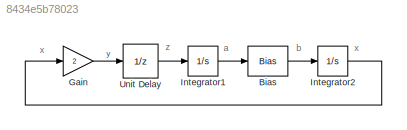
MODEL slx_8434e5b78023
KIND model
CONFIG AbsTol = auto
CONFIG EnableMultiTasking = off
CONFIG FixedStep = auto
CONFIG MaxStep = auto
CONFIG MinStep = auto
CONFIG RelTol = 1e-3
CONFIG SampleTimeConstraint = Unconstrained
CONFIG SolverName = VariableStepAuto
CONFIG StartTime = 0.0
CONFIG StopTime = 10.0
BLOCK [Bias] Bias 
  Bias = 2
  SaturateOnIntegerOverflow = off
BLOCK [Gain] Gain 
  Gain = 2
  SampleTime = 1
BLOCK [Integrator] Integrator1 
  Ports = [1, 1]
BLOCK [Integrator] Integrator2 
  Ports = [1, 1]
BLOCK [UnitDelay] Unit Delay 
  HasFrameUpgradeWarning = on
  SampleTime = -1
ANNOTATION (root): a
ANNOTATION (root): b
ANNOTATION (root): x
ANNOTATION (root): z
LINE Bias :1 -> Integrator2 :1
LINE Gain :1 -> Unit Delay :1
LINE Integrator1 :1 -> Bias :1
LINE Integrator2 :1 -> Gain :1
LINE Unit Delay :1 -> Integrator1 :1
